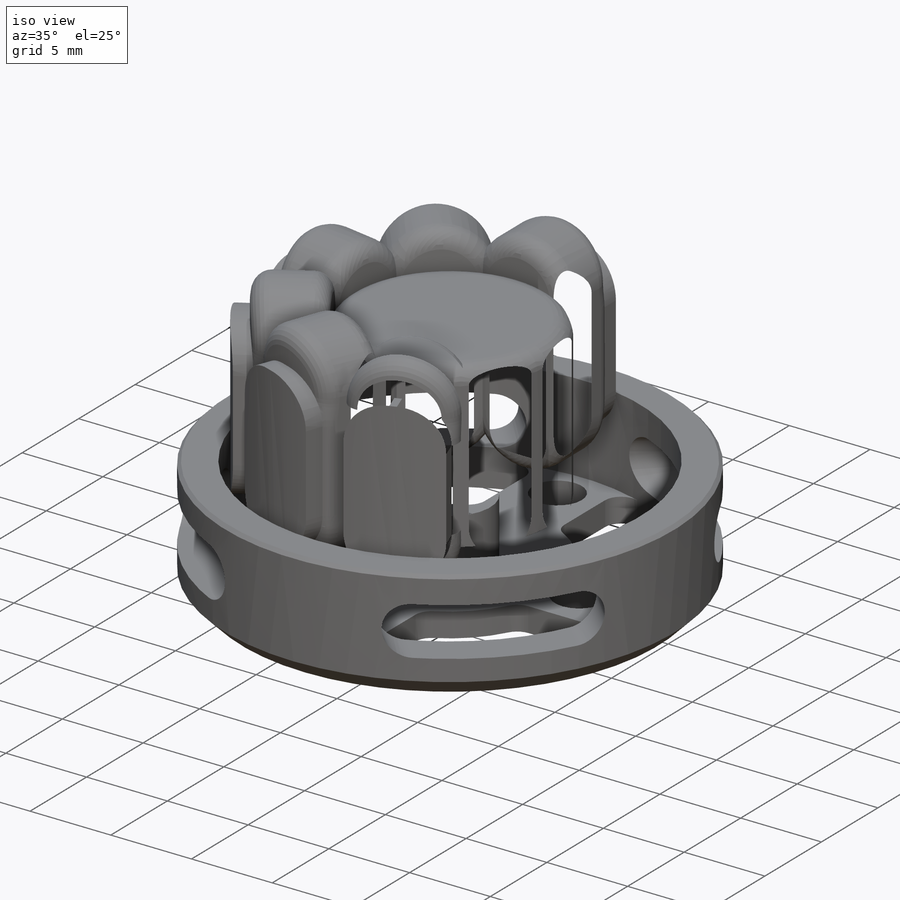
[diagram: iso view]
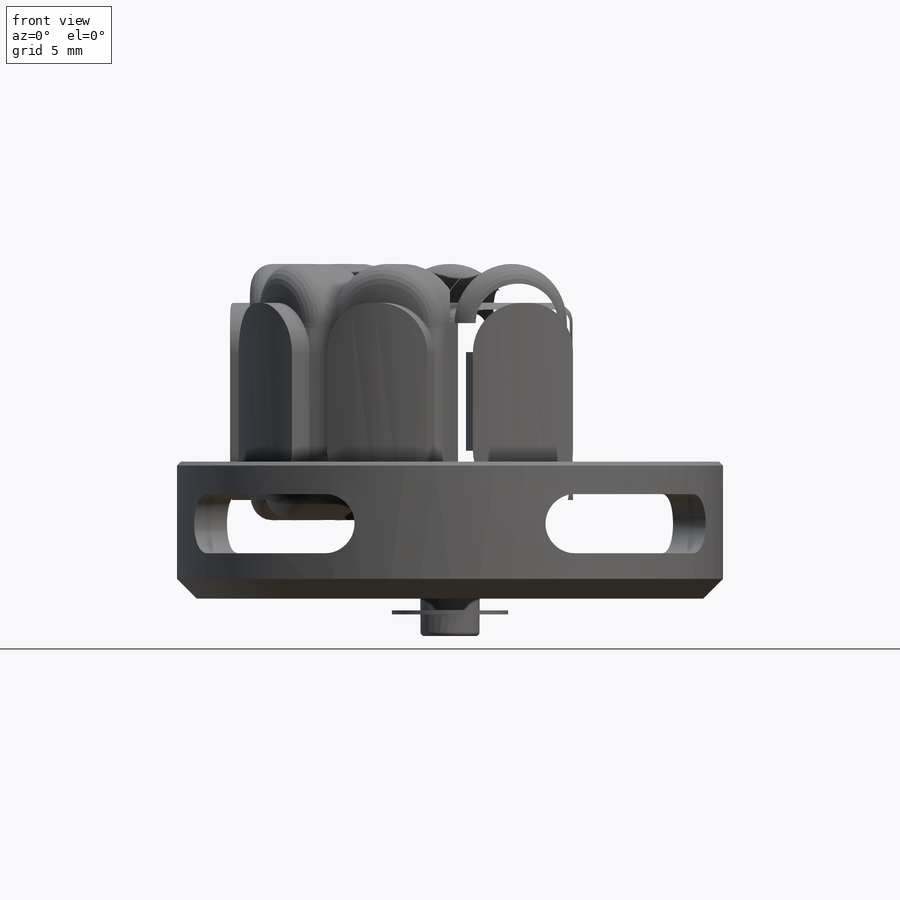
[diagram: front view]
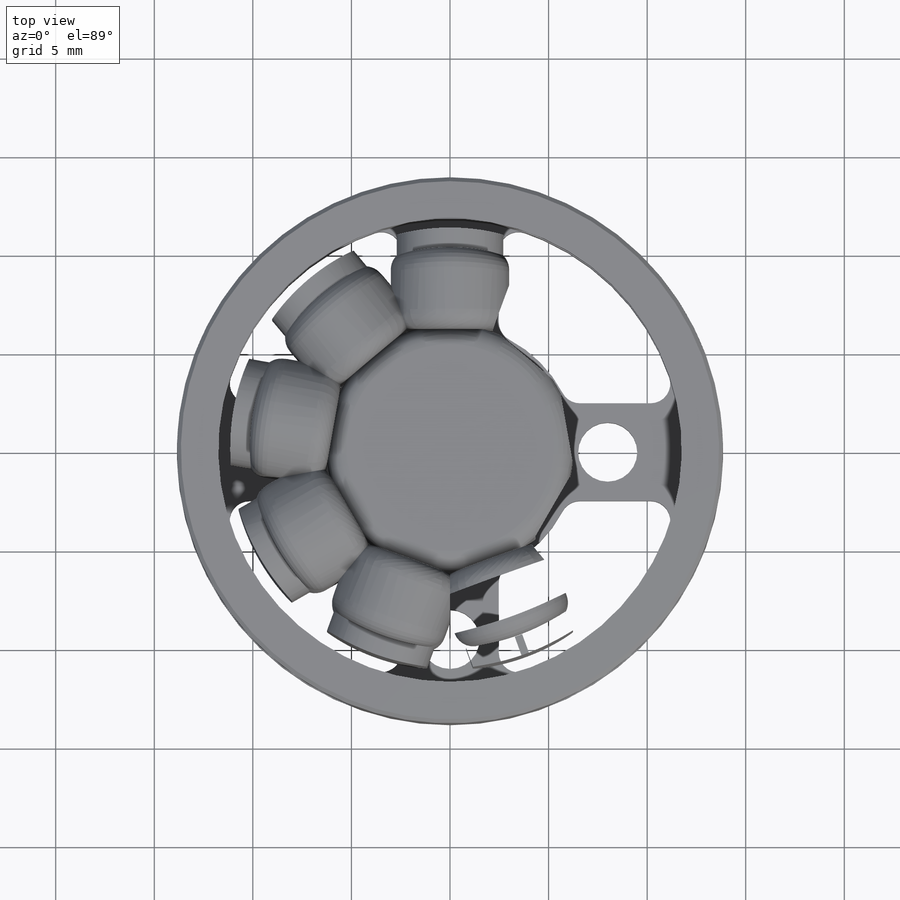
[diagram: top view]
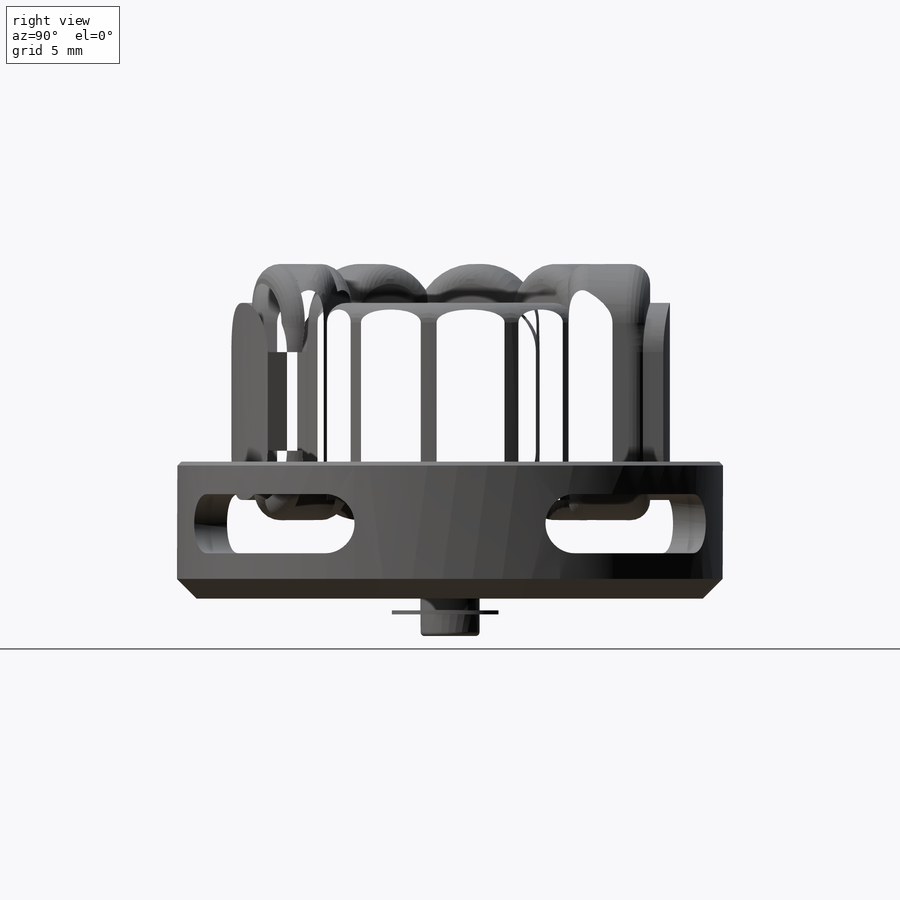
[diagram: right view]
SOLIDWORKS PART (.sldprt)
format: sldprt  version: not decoded by parser v0  size: 2,099,712 bytes
history: native  units: mm
features: sketch x15, fillet x5, extrude x5, cut_extrude x3, plane x3, pattern_circular x3, sweep x2, material x1, revolve x1, hole x1, chamfer x1 + 2 further entries (+13 scaffold rows collapsed)
feature tree (55):
  scaffold x13  (default folders/planes/origin — collapsed)
  material  "Al 6061-T6"
  "X Axis"
  "Y Axis"
  sketch  "Sketch1"  dims[c1.D1=25.0mm c1.D2=27.7mm c1.D3=9.0mm c1.D4=18.0mm c1.D5=2.2mm c1.D6=22.6mm c1.D7=5.55mm c1.D8=6.8mm c1.D9=24.0mm c1.D10=3.5mm c1.D11=~6.828837mm c2.D10=25.0mm c2.D11=1.0mm c2.D12=2.7mm c2.D13=1.5mm c2.D14=5.0mm c2.D15=5.0mm c2.D16=2.0mm c2.D17=6.0mm c2.D18=1.5mm c2.D19=~13.706192mm c3.D19=25.0deg c3.D20=5.0mm c3.D21=10.5mm c3.D22=0.6mm c3.D23=7.7mm c3.D24=6.95mm c3.D3=1.0mm c3.D4=23.5mm]
  revolve  "Revolve1"  Angle=360deg
  sketch  "Sketch3"  dims[c1.D1=23.5mm c1.D2=12.9mm c2.D1=8.85mm c2.D2=17.7mm c2.D3=2.475mm c2.D4=2.475mm]
  cut_extrude  "Cut-Extrude2"  [1 undecoded]
  fillet  "Fillet8"  Radius=1mm
  plane  "Plane2"
  sketch  "Sketch15"  dims[D1=3.0mm D2=11.5mm D3=2.3mm]
  cut_extrude  "Cut-Extrude6"  Depth=10mm
  pattern_circular  "CirPattern2"  Count=4 Angle=360deg
  hole  "M3x0.5 Tapped Hole1"  Diameter=3mm Depth=1.501mm
  sketch  "Sketch5"  dims[c1.D1=8.0mm c2.D1=45.0deg c2.D2=9.5mm c3.D1=8.0mm]
  sketch  "Sketch4"  dims[hole-wizard template sketch: 60 standard entries collapsed; hole parameters kept: c18.Thru Tap Drill Depth=1.501mm]
  pattern_circular  "CirPattern17"  Count=2 Angle=360deg
  sketch  "Sketch13"  dims[D1=8.45mm]
  cut_extrude  "Cut-Extrude5"  Depth=0.2mm
  sketch  "Sketch14"  dims[D1=3.0mm D2=5.9mm D3=3.0mm D4=4.5mm]
  extrude  "Boss-Extrude4"  Depth=2.1mm
  extrude  "Boss-Extrude5"  [1 undecoded]
  sketch  "Sketch14<3>"  dims[D1=0.2mm D19=0.8mm]
  fillet  "Fillet9"  Radius=0.2mm
  chamfer  "Chamfer1"  Distance=0.2mm Angle=45deg
  sketch  "Sketch7"  dims[c1.D1=~20.473354mm c1.D2=~20.562092mm c1.D3=12.5mm c2.D1=1.0mm c2.D2=0.6mm c2.D4=2.7mm c2.D5=2.7mm]
  extrude  "Boss-Extrude1"  Depth=10mm
  fillet  "Fillet5"  Radius=2.5mm
  extrude  "Boss-Extrude2"  [1 undecoded]
  sketch  "Sketch7<3>"  dims[D1=10.0mm]
  fillet  "Fillet7"  Radius=1mm
  sketch  "Sketch9"  dims[D1=7.0mm D2=6.0mm D3=7.0mm]
  extrude  "Boss-Extrude3"  Depth=6mm
  fillet  "Fillet6"  Radius=1mm
  pattern_circular  "CirPattern16"  Count=9 Angle=360deg
  sketch  "Sketch10"  dims[c1.D2=~7.874025mm c1.D1=40.0mm c2.D2=0.2mm c2.D1=30.0mm c2.D3=10.0mm]
  plane  "Plane1"
  sketch  "Sketch11"  dims[D1=2.0mm D2=4.5mm]
  sweep  "Sweep1"
  sketch  "Sketch16"  dims[D1=13.0mm D2=25.0mm D3=5.0mm D4=9.0mm]
  plane  "Plane3"
  sketch  "Sketch17"  dims[D1=1.2mm D2=5.0mm]
  sweep  "Sweep2"
decode coverage: 31 of 36 modeling features carry decoded parameters; 2 rows unclassified (native names shown)
note: ~ marks probable driven/reference dimensions
note: 3 parameter values undecoded
summary: no parameter record found for 3 features
note: suppression state not decoded; provenance and decode notes live in map.json
